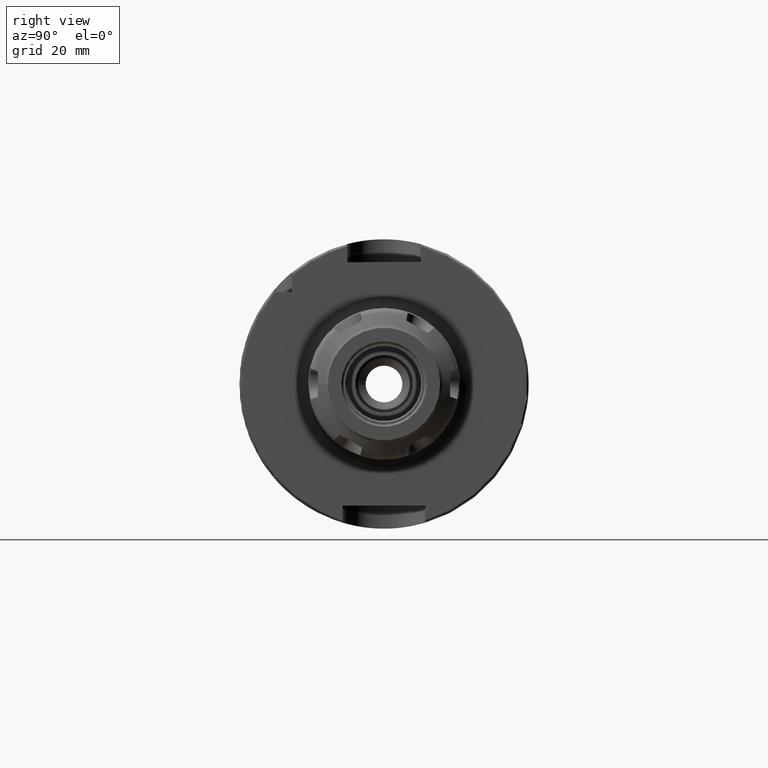
[diagram: clean part render]
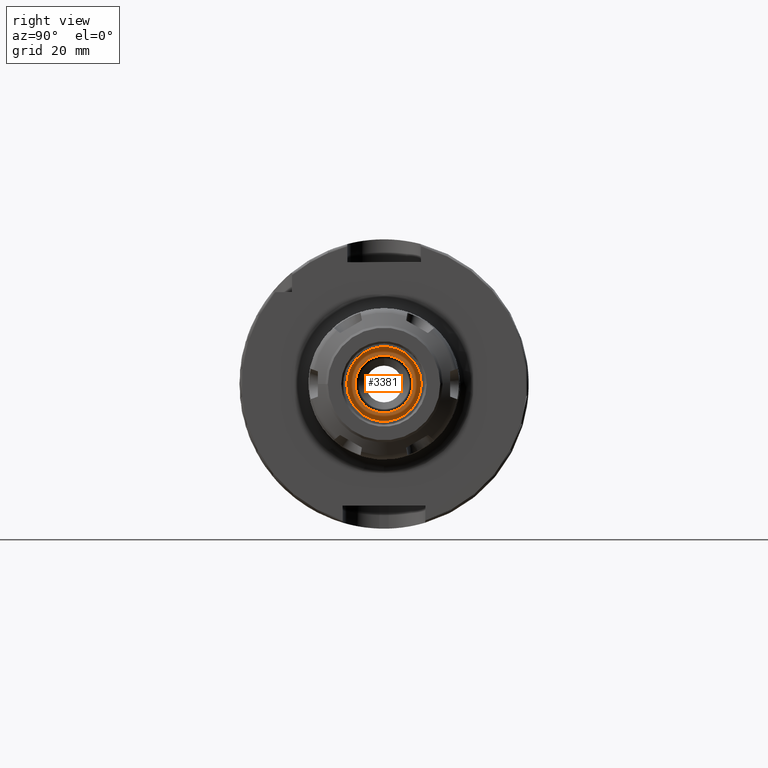
[diagram: same view with one face highlighted and labeled with its STEP entity id]
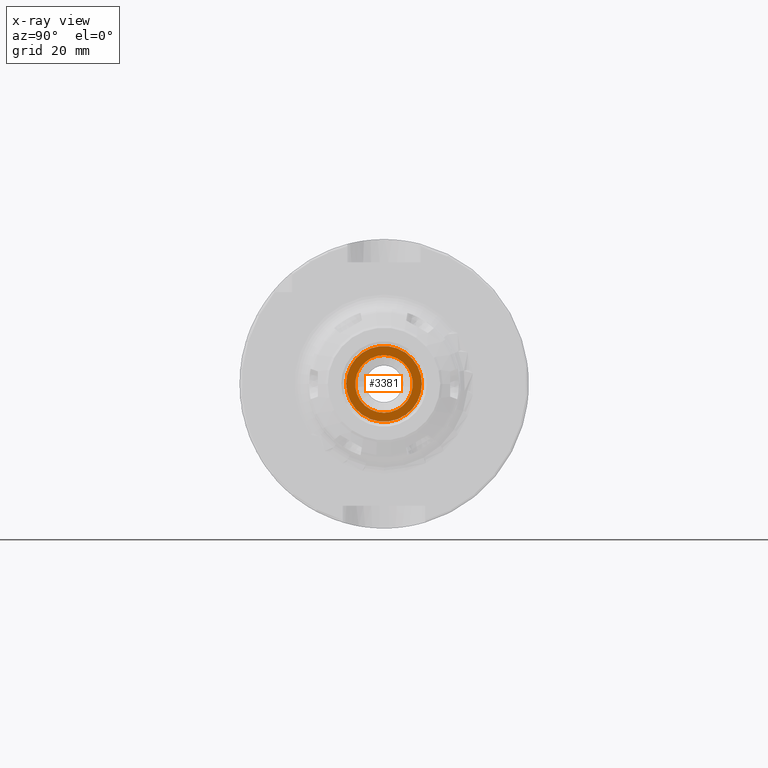
[diagram: x-ray of the same camera — body ghosted, the highlighted face saturated]
A machine part, right view. The second image highlights one B-rep face of the part: STEP entity #3381.
The next image is the same camera in x-ray: the body ghosted, the highlighted face saturated — about 9% of this face is hidden behind the body in this view.
In plain terms, the highlighted planar face has unit normal (1, 0, 0).
Its self-contained STEP definition (entity closure, byte-faithful):
#173=FACE_BOUND('',#564,.T.);
#190=PLANE('',#3683);
#360=FACE_OUTER_BOUND('',#563,.T.);
#563=EDGE_LOOP('',(#2326));
#564=EDGE_LOOP('',(#2327));
#1134=CIRCLE('',#3637,6.2865);
#1165=CIRCLE('',#3682,8.25);
#1349=VERTEX_POINT('',#5106);
#1383=VERTEX_POINT('',#5200);
#1703=EDGE_CURVE('',#1349,#1349,#1134,.T.);
#1750=EDGE_CURVE('',#1383,#1383,#1165,.T.);
#2326=ORIENTED_EDGE('',*,*,#1750,.T.);
#2327=ORIENTED_EDGE('',*,*,#1703,.T.);
#3381=ADVANCED_FACE('',(#360,#173),#190,.T.);
#3637=AXIS2_PLACEMENT_3D('',#5107,#4072,#4073);
#3682=AXIS2_PLACEMENT_3D('',#5202,#4178,#4179);
#3683=AXIS2_PLACEMENT_3D('',#5203,#4180,#4181);
#4072=DIRECTION('center_axis',(-1.,0.,0.));
#4073=DIRECTION('ref_axis',(0.,0.,-1.));
#4178=DIRECTION('center_axis',(1.,0.,0.));
#4179=DIRECTION('ref_axis',(0.,0.,-1.));
#4180=DIRECTION('center_axis',(1.,0.,0.));
#4181=DIRECTION('ref_axis',(0.,0.,-1.));
#5106=CARTESIAN_POINT('',(56.4,7.69874210283984E-16,6.2865));
#5107=CARTESIAN_POINT('Origin',(56.4,0.,0.));
#5200=CARTESIAN_POINT('',(56.4,-8.25,-1.01033360929657E-15));
#5202=CARTESIAN_POINT('Origin',(56.4,0.,0.));
#5203=CARTESIAN_POINT('Origin',(56.4,0.,0.));